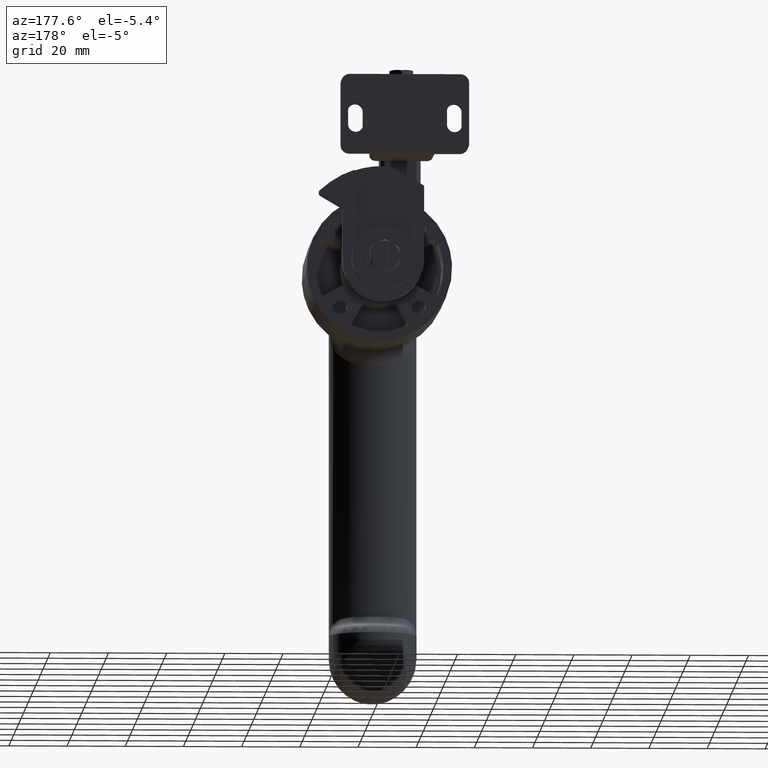
[diagram: clean part render]
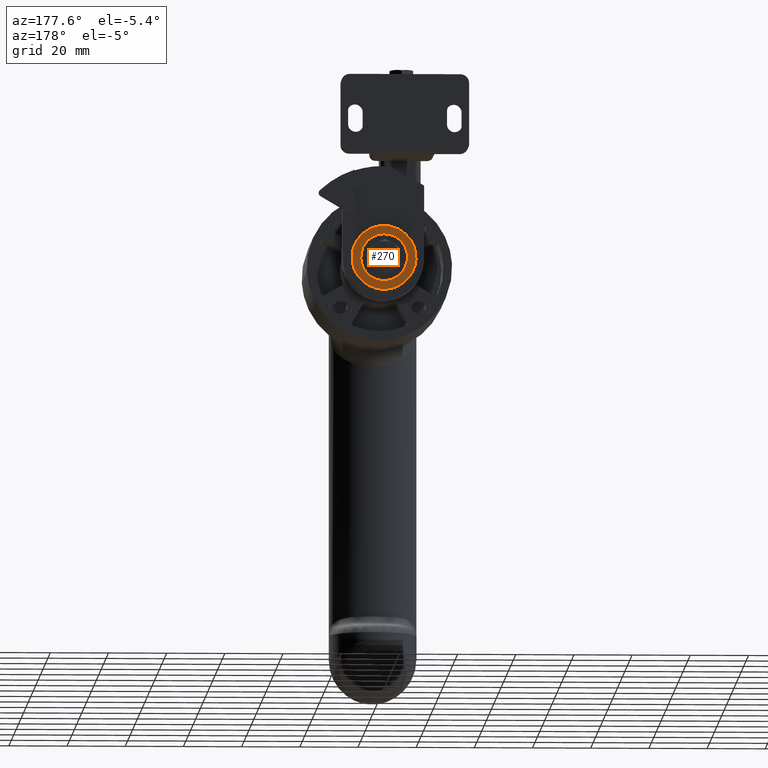
[diagram: same view with one face highlighted and labeled with its STEP entity id]
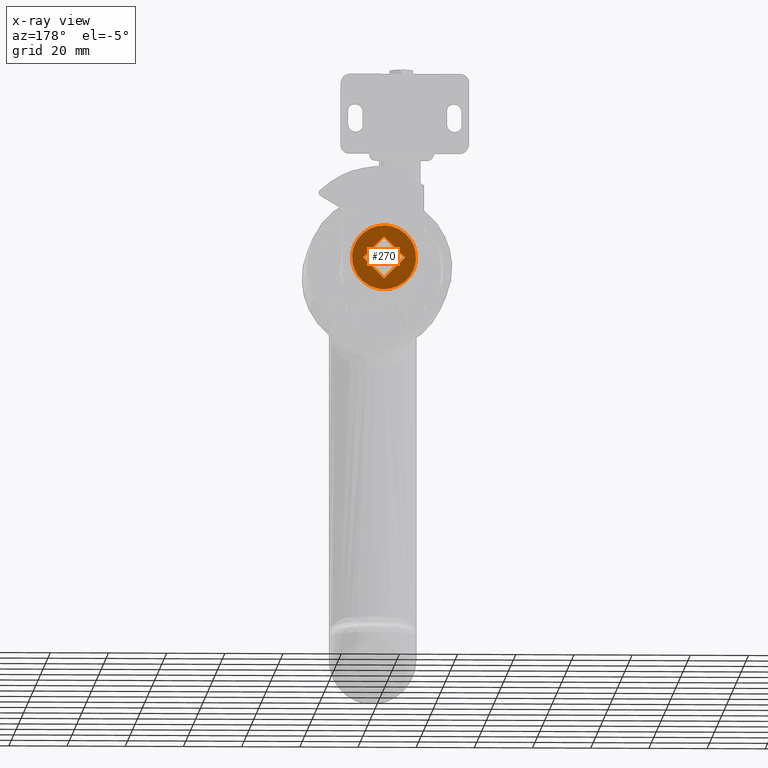
[diagram: x-ray of the same camera — body ghosted, the highlighted face saturated]
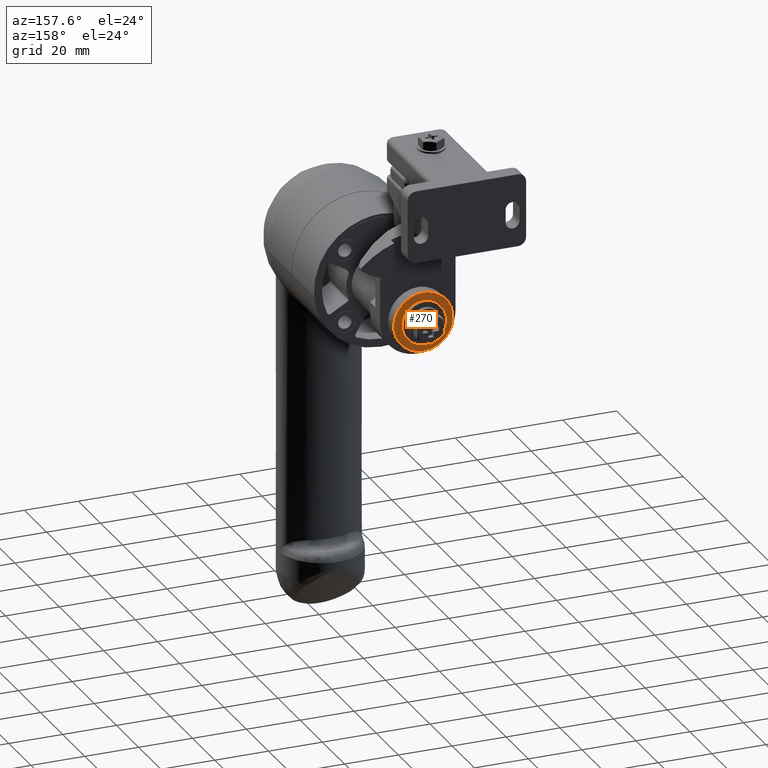
[diagram: same view with one face highlighted and labeled with its STEP entity id]
A machine part, auxiliary view. The second image highlights one B-rep face of the part: STEP entity #270.
The next image is the same camera in x-ray: the body ghosted, the highlighted face saturated — about 0% of this face is hidden behind the body in this view.
A second angle (auxiliary view) of the same face is appended — the face is thin or edge-on in the first view.
In plain terms, the highlighted face is a freeform B-spline surface patch.
Its self-contained STEP definition (entity closure, byte-faithful):
#40=CARTESIAN_POINT('',(10.966090671003011,14.0,0.863050053086122));
#41=VERTEX_POINT('',#40);
#47=CARTESIAN_POINT('',(-1.384706E-010,14.0,11.000000000083100));
#48=VERTEX_POINT('',#47);
#49=CARTESIAN_POINT('',(-1.384706E-010,14.0,11.000000000083100));
#50=CARTESIAN_POINT('',(10.168295408110438,13.999999999999998,11.000000000083100));
#51=CARTESIAN_POINT('',(10.966090671003013,13.999999999999996,0.863050053086121));
#59=(BOUNDED_CURVE()B_SPLINE_CURVE(2,(#49,#50,#51),.UNSPECIFIED.,.F.,.U.)B_SPLINE_CURVE_WITH_KNOTS((3,3),(0.0,0.236331300631621),.UNSPECIFIED.)CURVE()GEOMETRIC_REPRESENTATION_ITEM()RATIONAL_B_SPLINE_CURVE((1.0,0.723120658606539,0.969723356169424))REPRESENTATION_ITEM(''));
#60=EDGE_CURVE('',#48,#41,#59,.T.);
#62=CARTESIAN_POINT('',(-10.966090671279950,14.0,-0.863050053086123));
#63=VERTEX_POINT('',#62);
#64=CARTESIAN_POINT('',(-10.966090671279957,13.999999999999996,-0.863050053086124));
#65=CARTESIAN_POINT('',(-11.000000000221567,13.999999999999996,-0.432191177124456));
#66=CARTESIAN_POINT('',(-11.000000000221570,14.0,1.550964E-025));
#67=CARTESIAN_POINT('',(-11.000000000221570,13.999999999999998,11.000000000083100));
#68=CARTESIAN_POINT('',(-1.384706E-010,14.0,11.000000000083100));
#76=(BOUNDED_CURVE()B_SPLINE_CURVE(2,(#64,#65,#66,#67,#68),.UNSPECIFIED.,.F.,.U.)B_SPLINE_CURVE_WITH_KNOTS((3,2,3),(0.736331300631621,0.750000000000000,1.0),.UNSPECIFIED.)CURVE()GEOMETRIC_REPRESENTATION_ITEM()RATIONAL_B_SPLINE_CURVE((0.969723356169424,0.983986122580008,1.0,0.707106781186547,1.0))REPRESENTATION_ITEM(''));
#77=EDGE_CURVE('',#63,#48,#76,.T.);
#153=CARTESIAN_POINT('',(-1.384706E-010,14.0,-11.000000000083100));
#154=VERTEX_POINT('',#153);
#155=CARTESIAN_POINT('',(-1.384706E-010,14.0,-11.000000000083100));
#156=CARTESIAN_POINT('',(-10.168295408387378,13.999999999999998,-11.000000000083100));
#157=CARTESIAN_POINT('',(-10.966090671279957,13.999999999999996,-0.863050053086124));
#165=(BOUNDED_CURVE()B_SPLINE_CURVE(2,(#155,#156,#157),.UNSPECIFIED.,.F.,.U.)B_SPLINE_CURVE_WITH_KNOTS((3,3),(0.500000000000000,0.736331300631621),.UNSPECIFIED.)CURVE()GEOMETRIC_REPRESENTATION_ITEM()RATIONAL_B_SPLINE_CURVE((1.0,0.723120658606539,0.969723356169424))REPRESENTATION_ITEM(''));
#166=EDGE_CURVE('',#154,#63,#165,.T.);
#168=CARTESIAN_POINT('',(10.966090671003013,13.999999999999996,0.863050053086121));
#169=CARTESIAN_POINT('',(10.999999999944635,13.999999999999996,0.432191177124454));
#170=CARTESIAN_POINT('',(10.999999999944629,14.0,1.550964E-025));
#171=CARTESIAN_POINT('',(10.999999999944629,13.999999999999998,-11.000000000083100));
#172=CARTESIAN_POINT('',(-1.384706E-010,14.0,-11.000000000083100));
#180=(BOUNDED_CURVE()B_SPLINE_CURVE(2,(#168,#169,#170,#171,#172),.UNSPECIFIED.,.F.,.U.)B_SPLINE_CURVE_WITH_KNOTS((3,2,3),(0.236331300631621,0.250000000000000,0.500000000000000),.UNSPECIFIED.)CURVE()GEOMETRIC_REPRESENTATION_ITEM()RATIONAL_B_SPLINE_CURVE((0.969723356169424,0.983986122580008,1.0,0.707106781186547,1.0))REPRESENTATION_ITEM(''));
#181=EDGE_CURVE('',#41,#154,#180,.T.);
#229=CARTESIAN_POINT('',(12.095542486468331,14.0,12.098899957451129));
#230=CARTESIAN_POINT('',(-12.095542880135930,14.0,12.098899957451140));
#231=CARTESIAN_POINT('',(12.095542486468331,14.0,-12.098900547537120));
#232=CARTESIAN_POINT('',(-12.095542880135930,14.0,-12.098900547537120));
#233=B_SPLINE_SURFACE_WITH_KNOTS('',1,1,((#229,#231),(#230,#232)),.UNSPECIFIED.,.F.,.F.,.U.,(2,2),(2,2),(0.0,24.191085366604259),(0.0,24.197800504988251),.UNSPECIFIED.);
#234=ORIENTED_EDGE('',*,*,#60,.T.);
#235=ORIENTED_EDGE('',*,*,#181,.T.);
#236=ORIENTED_EDGE('',*,*,#166,.T.);
#237=ORIENTED_EDGE('',*,*,#77,.T.);
#238=EDGE_LOOP('',(#234,#235,#236,#237));
#239=FACE_OUTER_BOUND('',#238,.T.);
#240=CARTESIAN_POINT('',(-7.212489168241409,14.0,4.416230E-016));
#241=VERTEX_POINT('',#240);
#242=CARTESIAN_POINT('',(-1.386979E-010,14.0,7.212489168102991));
#243=VERTEX_POINT('',#242);
#244=CARTESIAN_POINT('',(-7.212489168241409,14.0,4.416230E-016));
#245=CARTESIAN_POINT('',(-1.386979E-010,14.0,7.212489168102991));
#246=QUASI_UNIFORM_CURVE('',1,(#244,#245),.UNSPECIFIED.,.F.,.U.);
#247=EDGE_CURVE('',#241,#243,#246,.T.);
#248=ORIENTED_EDGE('',*,*,#247,.F.);
#249=CARTESIAN_POINT('',(-1.384706E-010,14.0,-7.212489168102709));
#250=VERTEX_POINT('',#249);
#251=CARTESIAN_POINT('',(-1.384706E-010,14.0,-7.212489168102709));
#252=CARTESIAN_POINT('',(-7.212489168241409,14.0,4.416230E-016));
#253=QUASI_UNIFORM_CURVE('',1,(#251,#252),.UNSPECIFIED.,.F.,.U.);
#254=EDGE_CURVE('',#250,#241,#253,.T.);
#255=ORIENTED_EDGE('',*,*,#254,.F.);
#256=CARTESIAN_POINT('',(7.212489167964121,14.0,-4.416230E-016));
#257=VERTEX_POINT('',#256);
#258=CARTESIAN_POINT('',(7.212489167964121,14.0,-4.416230E-016));
#259=CARTESIAN_POINT('',(-1.384706E-010,14.0,-7.212489168102709));
#260=QUASI_UNIFORM_CURVE('',1,(#258,#259),.UNSPECIFIED.,.F.,.U.);
#261=EDGE_CURVE('',#257,#250,#260,.T.);
#262=ORIENTED_EDGE('',*,*,#261,.F.);
#263=CARTESIAN_POINT('',(-1.386979E-010,14.0,7.212489168102991));
#264=CARTESIAN_POINT('',(7.212489167964121,14.0,-4.416230E-016));
#265=QUASI_UNIFORM_CURVE('',1,(#263,#264),.UNSPECIFIED.,.F.,.U.);
#266=EDGE_CURVE('',#243,#257,#265,.T.);
#267=ORIENTED_EDGE('',*,*,#266,.F.);
#268=EDGE_LOOP('',(#248,#255,#262,#267));
#269=FACE_BOUND('',#268,.T.);
#270=ADVANCED_FACE('',(#239,#269),#233,.F.);